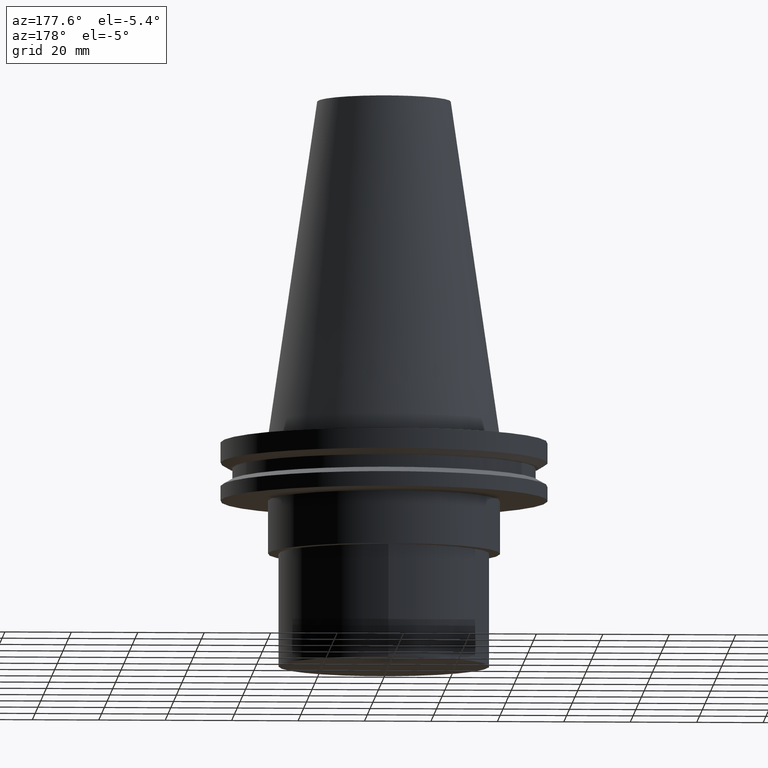
[diagram: clean part render]
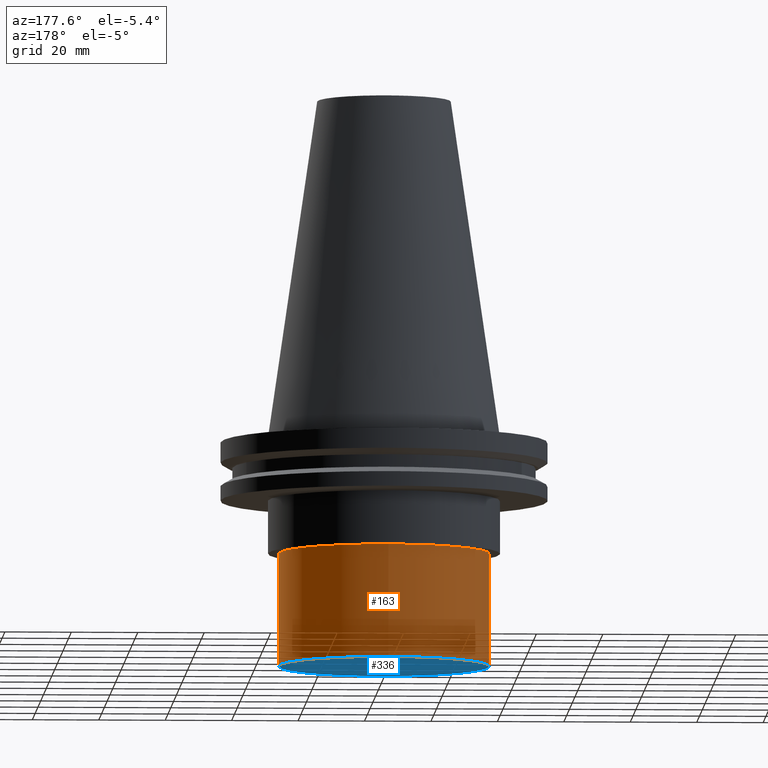
[diagram: same view with the hole feature highlighted: cylindrical wall and planar end face, labeled with their STEP entity ids]
A machine part, auxiliary view. The highlighted faces form one hole feature of diameter 63.5 mm: the cylindrical wall (entity #163, orange) and its adjacent planar end face (entity #336, blue) — they share a circular edge in the B-rep.
Wall:
#3 = FACE_OUTER_BOUND ( 'NONE', #6, .T. ) ;
#6 = EDGE_LOOP ( 'NONE', ( #117 ) ) ;
#7 = AXIS2_PLACEMENT_3D ( 'NONE', #22, #202, #200 ) ;
#22 = CARTESIAN_POINT ( 'NONE',  ( 0.000000000000000000, -1.880790961315660013E-34, -35.00000000000000000 ) ) ;
#28 = DIRECTION ( 'NONE',  ( -0.000000000000000000, 4.898587196590859309E-20, -1.000000000000000000 ) ) ;
#50 = VERTEX_POINT ( 'NONE', #230 ) ;
#61 = EDGE_CURVE ( 'NONE', #296, #296, #246, .T. ) ;
#83 = AXIS2_PLACEMENT_3D ( 'NONE', #337, #275, #91 ) ;
#91 = DIRECTION ( 'NONE',  ( 0.000000000000000000, 1.000000000000000000, 0.000000000000000000 ) ) ;
#117 = ORIENTED_EDGE ( 'NONE', *, *, #61, .T. ) ;
#146 = CYLINDRICAL_SURFACE ( 'NONE', #83, 31.75000000000000000 ) ;
#163 = ADVANCED_FACE ( 'NONE', ( #3, #180 ), #146, .T. ) ;
#180 = FACE_OUTER_BOUND ( 'NONE', #289, .T. ) ;
#200 = DIRECTION ( 'NONE',  ( 0.000000000000000000, 1.000000000000000000, 0.000000000000000000 ) ) ;
#202 = DIRECTION ( 'NONE',  ( -0.000000000000000000, 4.898587196590859309E-20, -1.000000000000000000 ) ) ;
#218 = EDGE_CURVE ( 'NONE', #50, #50, #360, .T. ) ;
#230 = CARTESIAN_POINT ( 'NONE',  ( 0.000000000000000000, 31.75000000000000000, -69.00000000000000000 ) ) ;
#236 = CARTESIAN_POINT ( 'NONE',  ( 0.000000000000000000, 1.665519646840892177E-18, -69.00000000000000000 ) ) ;
#246 = CIRCLE ( 'NONE', #7, 31.75000000000000000 ) ;
#256 = ORIENTED_EDGE ( 'NONE', *, *, #218, .F. ) ;
#275 = DIRECTION ( 'NONE',  ( -0.000000000000000000, 4.898587196590859309E-20, -1.000000000000000000 ) ) ;
#289 = EDGE_LOOP ( 'NONE', ( #256 ) ) ;
#296 = VERTEX_POINT ( 'NONE', #327 ) ;
#327 = CARTESIAN_POINT ( 'NONE',  ( 0.000000000000000000, 31.75000000000000000, -35.00000000000000000 ) ) ;
#337 = CARTESIAN_POINT ( 'NONE',  ( 0.000000000000000000, 1.665519646840892177E-18, -69.00000000000000000 ) ) ;
#360 = CIRCLE ( 'NONE', #379, 31.75000000000000000 ) ;
#368 = DIRECTION ( 'NONE',  ( 0.000000000000000000, 1.000000000000000000, 0.000000000000000000 ) ) ;
#379 = AXIS2_PLACEMENT_3D ( 'NONE', #236, #28, #368 ) ;
End face:
#28 = DIRECTION ( 'NONE',  ( -0.000000000000000000, 4.898587196590859309E-20, -1.000000000000000000 ) ) ;
#35 = FACE_OUTER_BOUND ( 'NONE', #372, .T. ) ;
#50 = VERTEX_POINT ( 'NONE', #230 ) ;
#70 = DIRECTION ( 'NONE',  ( 0.000000000000000000, 1.000000000000000000, 4.898587196590859309E-20 ) ) ;
#97 = PLANE ( 'NONE',  #124 ) ;
#124 = AXIS2_PLACEMENT_3D ( 'NONE', #348, #344, #70 ) ;
#160 = ORIENTED_EDGE ( 'NONE', *, *, #218, .T. ) ;
#218 = EDGE_CURVE ( 'NONE', #50, #50, #360, .T. ) ;
#230 = CARTESIAN_POINT ( 'NONE',  ( 0.000000000000000000, 31.75000000000000000, -69.00000000000000000 ) ) ;
#236 = CARTESIAN_POINT ( 'NONE',  ( 0.000000000000000000, 1.665519646840892177E-18, -69.00000000000000000 ) ) ;
#336 = ADVANCED_FACE ( 'NONE', ( #35 ), #97, .T. ) ;
#344 = DIRECTION ( 'NONE',  ( -0.000000000000000000, 4.898587196590859309E-20, -1.000000000000000000 ) ) ;
#348 = CARTESIAN_POINT ( 'NONE',  ( 0.000000000000000000, 31.75000000000000000, -69.00000000000000000 ) ) ;
#360 = CIRCLE ( 'NONE', #379, 31.75000000000000000 ) ;
#368 = DIRECTION ( 'NONE',  ( 0.000000000000000000, 1.000000000000000000, 0.000000000000000000 ) ) ;
#372 = EDGE_LOOP ( 'NONE', ( #160 ) ) ;
#379 = AXIS2_PLACEMENT_3D ( 'NONE', #236, #28, #368 ) ;